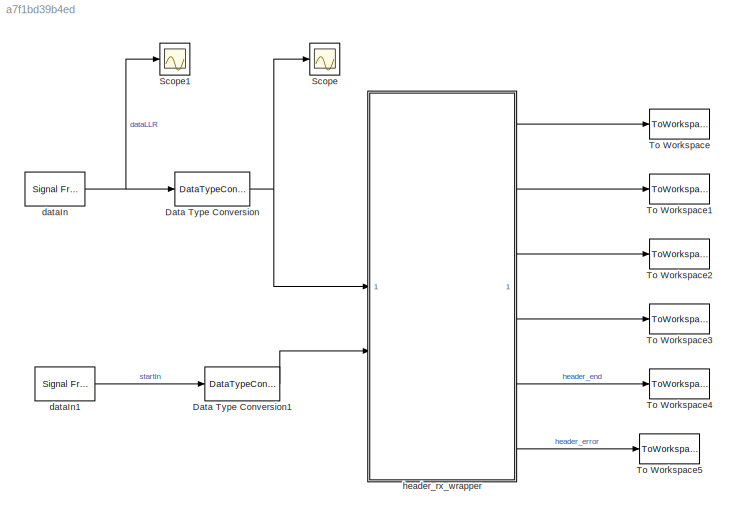
MODEL slx_a7f1bd39b4ed
KIND model
CONFIG AbsTol = auto
CONFIG EnableMultiTasking = off
CONFIG FixedStep = auto
CONFIG MaxStep = auto
CONFIG MinStep = auto
CONFIG RelTol = 1e-3
CONFIG SampleTimeConstraint = Unconstrained
CONFIG SolverName = FixedStepDiscrete
CONFIG StartTime = 0.0
CONFIG StopTime = stopTime
BLOCK [DataTypeConversion] Data Type Conversion
  OutDataTypeStr = CONST.rxQAMDemodDataType
  RndMeth = Round
  SaturateOnIntegerOverflow = off
BLOCK [DataTypeConversion] Data Type Conversion1
  OutDataTypeStr = boolean
  RndMeth = Floor
  SaturateOnIntegerOverflow = off
BLOCK [Scope] Scope
  Floating = off
  NumInputPorts = 1
  ScopeSpecificationString = Simulink.scopes.TimeScopeBlockCfg('CurrentConfiguration', extmgr.ConfigurationSet(extmgr.Configuration('Core','General UI',true),extmgr.Configuration('Core','Source UI',true),extmgr.Configuration('Sources','WiredSimulink',true,'DataLoggingSaveFormat','Array','DataLoggingDecimation','1'),extmgr.Configuration('Visuals','Time Domain',true,'SerializedDisplays',{struct('MinYLimReal','-2.78438','MaxYLim...<+1708ch>
BLOCK [Scope] Scope1
  Floating = off
  NumInputPorts = 1
  ScopeSpecificationString = Simulink.scopes.TimeScopeBlockCfg('CurrentConfiguration', extmgr.ConfigurationSet(extmgr.Configuration('Core','General UI',true),extmgr.Configuration('Core','Source UI',true),extmgr.Configuration('Sources','WiredSimulink',true,'DataLoggingSaveFormat','Array','DataLoggingDecimation','1','DataLoggingVariableName','ScopeData1'),extmgr.Configuration('Visuals','Time Domain',true,'SerializedDisplays',{s...<+1718ch>
BLOCK [ToWorkspace] To Workspace
  MaxDataPoints = inf
  SampleTime = 1/CONST.fs
  Save2DSignal = 2-D array (concatenate along first dimension)
  VariableName = reg0Out
BLOCK [ToWorkspace] To Workspace1
  MaxDataPoints = inf
  SampleTime = 1/CONST.fs
  Save2DSignal = 2-D array (concatenate along first dimension)
  VariableName = reg1Out
BLOCK [ToWorkspace] To Workspace2
  MaxDataPoints = inf
  SampleTime = 1/CONST.fs
  Save2DSignal = 2-D array (concatenate along first dimension)
  VariableName = reg2Out
BLOCK [ToWorkspace] To Workspace3
  MaxDataPoints = inf
  SampleTime = 1/CONST.fs
  Save2DSignal = 2-D array (concatenate along first dimension)
  VariableName = reg3Out
BLOCK [ToWorkspace] To Workspace4
  MaxDataPoints = inf
  SampleTime = 1/CONST.fs
  Save2DSignal = 2-D array (concatenate along first dimension)
  VariableName = endOut
BLOCK [ToWorkspace] To Workspace5
  MaxDataPoints = inf
  SampleTime = 1/CONST.fs
  Save2DSignal = 2-D array (concatenate along first dimension)
  VariableName = errOut
BLOCK [Reference] dataIn  REF=dspsrcs4/Signal From
Workspace
  SourceBlock = dspsrcs4/Signal From\nWorkspace
  SourceType = Signal From Workspace
BLOCK [Reference] dataIn1  REF=dspsrcs4/Signal From
Workspace
  SourceBlock = dspsrcs4/Signal From\nWorkspace
  SourceType = Signal From Workspace
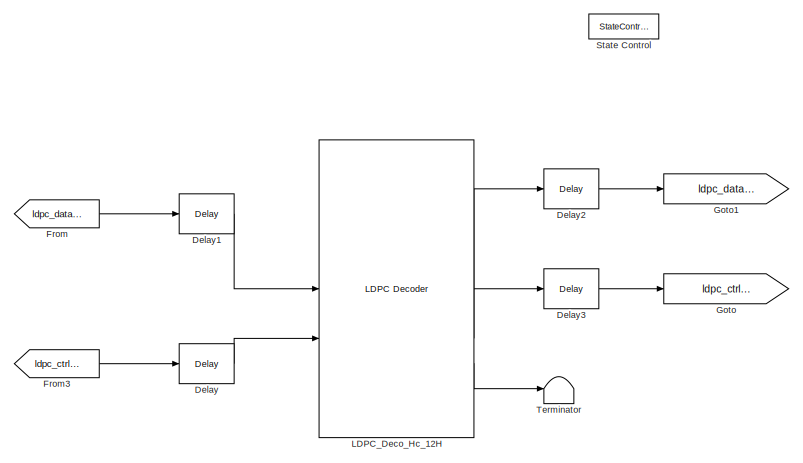
[diagram: header_rx_wrapper - part 1/3, top center region]
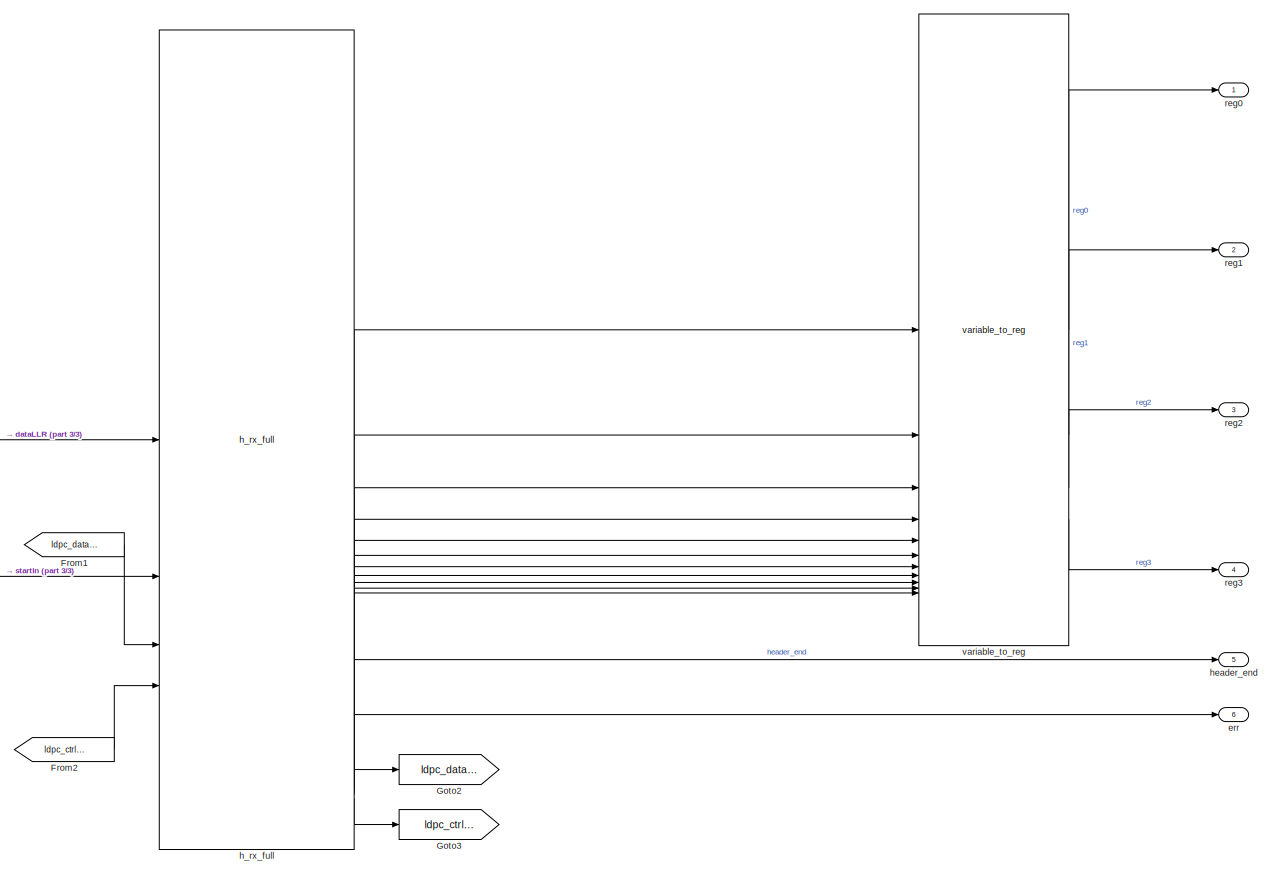
[diagram: header_rx_wrapper - part 2/3, full width, bottom band]
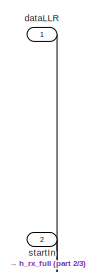
[diagram: header_rx_wrapper - part 3/3, middle left region]
BLOCK [SubSystem] header_rx_wrapper
  TreatAsAtomicUnit = on
BLOCK [Delay] header_rx_wrapper/Delay
  DelayLength = 3
  InitialCondition = 0
  InputPortMap = u0
  UseCircularBuffer = on
  UserDataPersistent = on
BLOCK [Delay] header_rx_wrapper/Delay1
  DelayLength = 3
  InitialCondition = 0
  InputPortMap = u0
  UseCircularBuffer = on
  UserDataPersistent = on
BLOCK [Delay] header_rx_wrapper/Delay2
  InitialCondition = 0
  InputPortMap = u0
  UseCircularBuffer = on
  UserDataPersistent = on
BLOCK [Delay] header_rx_wrapper/Delay3
  InitialCondition = 0
  InputPortMap = u0
  UseCircularBuffer = on
  UserDataPersistent = on
BLOCK [From] header_rx_wrapper/From
  GotoTag = ldpc_data_in
BLOCK [From] header_rx_wrapper/From1
  GotoTag = ldpc_data_out
BLOCK [From] header_rx_wrapper/From2
  GotoTag = ldpc_ctrl_out
BLOCK [From] header_rx_wrapper/From3
  GotoTag = ldpc_ctrl_in
BLOCK [Goto] header_rx_wrapper/Goto
  GotoTag = ldpc_ctrl_out
BLOCK [Goto] header_rx_wrapper/Goto1
  GotoTag = ldpc_data_out
BLOCK [Goto] header_rx_wrapper/Goto2
  GotoTag = ldpc_data_in
BLOCK [Goto] header_rx_wrapper/Goto3
  GotoTag = ldpc_ctrl_in
BLOCK [Reference] header_rx_wrapper/LDPC_Deco_Hc_12H  REF=whdledac/LDPC Decoder
  SourceBlock = whdledac/LDPC Decoder
  SourceType = LDPC Decoder
BLOCK [StateControl] header_rx_wrapper/State Control
  StateControl = Synchronous
BLOCK [Terminator] header_rx_wrapper/Terminator
BLOCK [Inport] header_rx_wrapper/dataLLR
BLOCK [Outport] header_rx_wrapper/err
  Port = 6
BLOCK [Reference] header_rx_wrapper/h_rx_full  REF=HDL_ieee_8021513/h_rx_full
  SourceBlock = HDL_ieee_8021513/h_rx_full
  SourceProductName = HDL IEEE 8021513
  SourceType = SubSystem
BLOCK [Outport] header_rx_wrapper/header_end
  Port = 5
BLOCK [Outport] header_rx_wrapper/reg0
BLOCK [Outport] header_rx_wrapper/reg1
  Port = 2
BLOCK [Outport] header_rx_wrapper/reg2
  Port = 3
BLOCK [Outport] header_rx_wrapper/reg3
  Port = 4
BLOCK [Inport] header_rx_wrapper/startIn
  Port = 2
BLOCK [Reference] header_rx_wrapper/variable_to_reg  REF=HDL_ieee_8021513/variable_to_reg
  SourceBlock = HDL_ieee_8021513/variable_to_reg
  SourceProductName = HDL IEEE 8021513
  SourceType = SubSystem
LINE Data Type Conversion1:1 -> header_rx_wrapper:2
NET Data Type Conversion:1 -> Scope:1, header_rx_wrapper:1
LINE dataIn1:1 -> Data Type Conversion1:1
NET dataIn:1 -> Data Type Conversion:1, Scope1:1
LINE header_rx_wrapper/Delay1:1 -> header_rx_wrapper/LDPC_Deco_Hc_12H:1
LINE header_rx_wrapper/Delay2:1 -> header_rx_wrapper/Goto1:1
LINE header_rx_wrapper/Delay3:1 -> header_rx_wrapper/Goto:1
LINE header_rx_wrapper/Delay:1 -> header_rx_wrapper/LDPC_Deco_Hc_12H:2
LINE header_rx_wrapper/From1:1 -> header_rx_wrapper/h_rx_full:3
LINE header_rx_wrapper/From2:1 -> header_rx_wrapper/h_rx_full:4
LINE header_rx_wrapper/From3:1 -> header_rx_wrapper/Delay:1
LINE header_rx_wrapper/From:1 -> header_rx_wrapper/Delay1:1
LINE header_rx_wrapper/LDPC_Deco_Hc_12H:1 -> header_rx_wrapper/Delay2:1
LINE header_rx_wrapper/LDPC_Deco_Hc_12H:2 -> header_rx_wrapper/Delay3:1
LINE header_rx_wrapper/LDPC_Deco_Hc_12H:3 -> header_rx_wrapper/Terminator:1
LINE header_rx_wrapper/dataLLR:1 -> header_rx_wrapper/h_rx_full:1
LINE header_rx_wrapper/h_rx_full:1 -> header_rx_wrapper/variable_to_reg:1
LINE header_rx_wrapper/h_rx_full:10 -> header_rx_wrapper/variable_to_reg:10
LINE header_rx_wrapper/h_rx_full:11 -> header_rx_wrapper/variable_to_reg:11
LINE header_rx_wrapper/h_rx_full:12 -> header_rx_wrapper/header_end:1
LINE header_rx_wrapper/h_rx_full:13 -> header_rx_wrapper/err:1
LINE header_rx_wrapper/h_rx_full:14 -> header_rx_wrapper/Goto2:1
LINE header_rx_wrapper/h_rx_full:15 -> header_rx_wrapper/Goto3:1
LINE header_rx_wrapper/h_rx_full:2 -> header_rx_wrapper/variable_to_reg:2
LINE header_rx_wrapper/h_rx_full:3 -> header_rx_wrapper/variable_to_reg:3
LINE header_rx_wrapper/h_rx_full:4 -> header_rx_wrapper/variable_to_reg:4
LINE header_rx_wrapper/h_rx_full:5 -> header_rx_wrapper/variable_to_reg:5
LINE header_rx_wrapper/h_rx_full:6 -> header_rx_wrapper/variable_to_reg:6
LINE header_rx_wrapper/h_rx_full:7 -> header_rx_wrapper/variable_to_reg:7
LINE header_rx_wrapper/h_rx_full:8 -> header_rx_wrapper/variable_to_reg:8
LINE header_rx_wrapper/h_rx_full:9 -> header_rx_wrapper/variable_to_reg:9
LINE header_rx_wrapper/startIn:1 -> header_rx_wrapper/h_rx_full:2
LINE header_rx_wrapper/variable_to_reg:1 -> header_rx_wrapper/reg0:1
LINE header_rx_wrapper/variable_to_reg:2 -> header_rx_wrapper/reg1:1
LINE header_rx_wrapper/variable_to_reg:3 -> header_rx_wrapper/reg2:1
LINE header_rx_wrapper/variable_to_reg:4 -> header_rx_wrapper/reg3:1
LINE header_rx_wrapper:1 -> To Workspace:1
LINE header_rx_wrapper:2 -> To Workspace1:1
LINE header_rx_wrapper:3 -> To Workspace2:1
LINE header_rx_wrapper:4 -> To Workspace3:1
LINE header_rx_wrapper:5 -> To Workspace4:1
LINE header_rx_wrapper:6 -> To Workspace5:1
note: NET lines group one-source signal fan-out (src -> all destinations, sorted); 1:1 wires keep LINE
